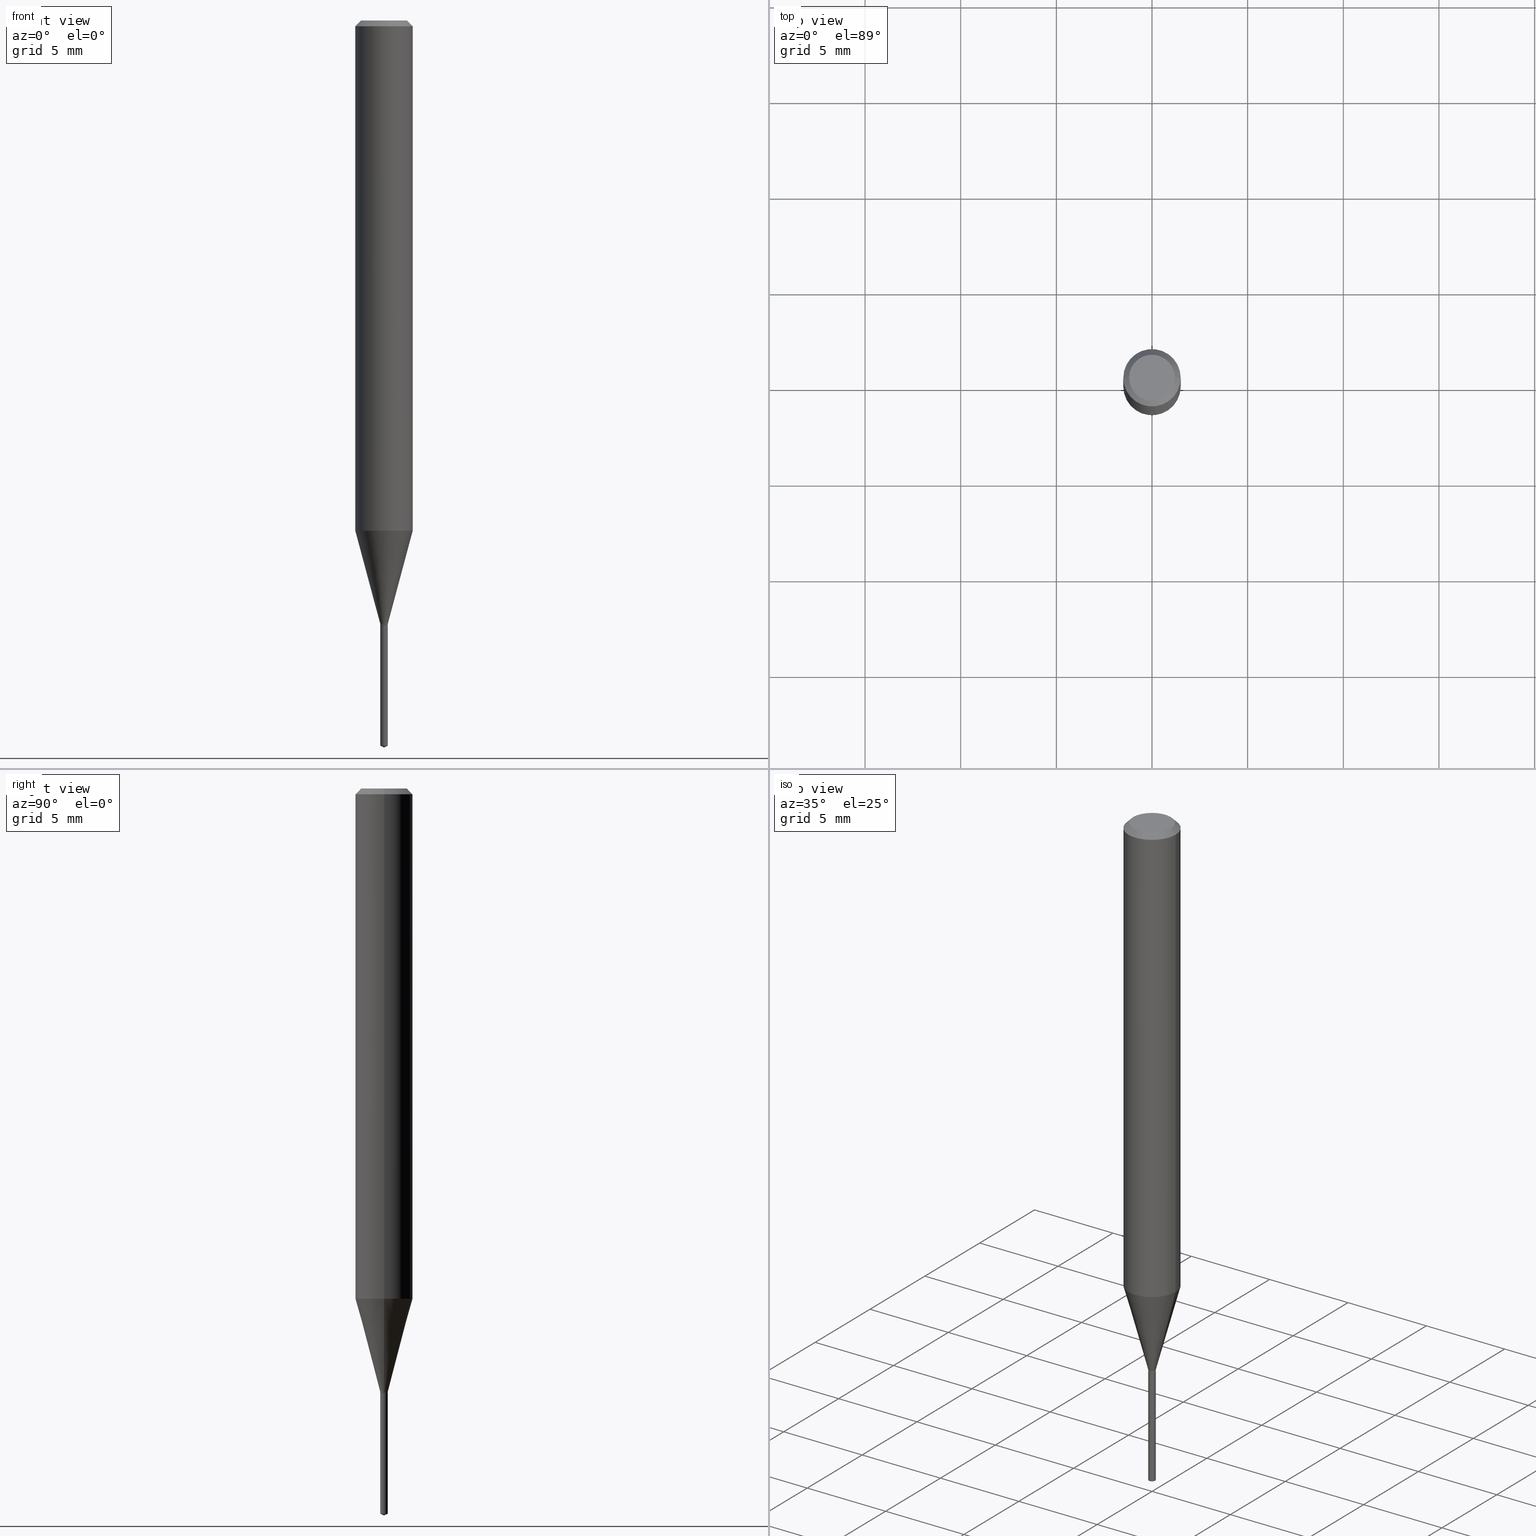
[diagram: canonical four-view strip — front | top / right | iso, engineering-drawing reading convention]
A machine part, canonical four-view strip (front | top / right | iso — engineering-drawing reading convention). The complete STEP part file that produces these views, byte-faithful:
ISO-10303-21;
HEADER;
FILE_DESCRIPTION (( 'STEP AP203' ),
    '1' );
FILE_NAME ('07758.STEP',
    '2024-04-24T02:24:44',
    ( '' ),
    ( '' ),
    'SwSTEP 2.0',
    'SolidWorks 2023',
    '' );
FILE_SCHEMA (( 'CONFIG_CONTROL_DESIGN' ));
ENDSEC;

DATA;
#1 = EDGE_LOOP ( 'NONE', ( #412, #160, #194, #294 ) ) ;
#2 = AXIS2_PLACEMENT_3D ( 'NONE', #390, #349, #127 ) ;
#3 = AXIS2_PLACEMENT_3D ( 'NONE', #31, #407, #65 ) ;
#4 = PRODUCT_RELATED_PRODUCT_CATEGORY ( 'detail', '', ( #161 ) ) ;
#5 = ORIENTED_EDGE ( 'NONE', *, *, #437, .T. ) ;
#6 =( NAMED_UNIT ( * ) PLANE_ANGLE_UNIT ( ) SI_UNIT ( $, .RADIAN. ) );
#7 = EDGE_LOOP ( 'NONE', ( #365, #5, #188, #200 ) ) ;
#8 = ORIENTED_EDGE ( 'NONE', *, *, #124, .T. ) ;
#9 = CIRCLE ( 'NONE', #2, 0.007700000000000000247 ) ;
#10 = AXIS2_PLACEMENT_3D ( 'NONE', #73, #265, #410 ) ;
#11 = CARTESIAN_POINT ( 'NONE',  ( 3.042407741774928155E-29, -4.343751933654757151E-15, -1.244099999999999984 ) ) ;
#12 = LINE ( 'NONE', #203, #266 ) ;
#13 = EDGE_CURVE ( 'NONE', #343, #262, #215, .T. ) ;
#14 = DIRECTION ( 'NONE',  ( 1.000000000000000000, -6.982962677686266711E-15, 4.876176775795936353E-29 ) ) ;
#15 = AXIS2_PLACEMENT_3D ( 'NONE', #472, #130, #428 ) ;
#16 = VECTOR ( 'NONE', #181, 39.37007874015748143 ) ;
#17 = LINE ( 'NONE', #133, #434 ) ;
#18 = COORDINATED_UNIVERSAL_TIME_OFFSET ( 5, 0, .BEHIND. ) ;
#19 = CARTESIAN_POINT ( 'NONE',  ( 0.04724000000000000421, -3.852183633974369345E-16, -3.380025165621689721E-19 ) ) ;
#20 = ADVANCED_FACE ( 'NONE', ( #278 ), #413, .T. ) ;
#21 = APPROVAL_ROLE ( '' ) ;
#22 = DIRECTION ( 'NONE',  ( 1.000000000000000000, -6.982962677686252511E-15, 0.000000000000000000 ) ) ;
#23 = CARTESIAN_POINT ( 'NONE',  ( 8.265746106709734507E-48, -1.180129479067563789E-33, -3.380025165646692144E-19 ) ) ;
#24 = CIRCLE ( 'NONE', #201, 0.007199999999999999803 ) ;
#25 = AXIS2_PLACEMENT_3D ( 'NONE', #405, #67, #293 ) ;
#26 = ORIENTED_EDGE ( 'NONE', *, *, #13, .T. ) ;
#27 = EDGE_CURVE ( 'NONE', #219, #220, #99, .T. ) ;
#28 = FACE_OUTER_BOUND ( 'NONE', #420, .T. ) ;
#29 = DIRECTION ( 'NONE',  ( -2.445468806185136597E-29, 3.491481338843145583E-15, 1.000000000000000000 ) ) ;
#30 = ORIENTED_EDGE ( 'NONE', *, *, #404, .F. ) ;
#31 = CARTESIAN_POINT ( 'NONE',  ( 4.132873053354867254E-48, -5.900647395337818946E-34, -1.690012582823346072E-19 ) ) ;
#32 = CC_DESIGN_SECURITY_CLASSIFICATION ( #129, ( #276 ) ) ;
#33 = DIRECTION ( 'NONE',  ( -2.445468806185136597E-29, 3.491481338843145583E-15, 1.000000000000000000 ) ) ;
#34 = ORIENTED_EDGE ( 'NONE', *, *, #27, .T. ) ;
#35 = ADVANCED_FACE ( 'NONE', ( #373 ), #38, .T. ) ;
#36 = CARTESIAN_POINT ( 'NONE',  ( 3.042407741774928155E-29, -4.343751933654757151E-15, -1.244099999999999984 ) ) ;
#37 = ORIENTED_EDGE ( 'NONE', *, *, #467, .F. ) ;
#38 = CYLINDRICAL_SURFACE ( 'NONE', #283, 0.007700000000000000247 ) ;
#39 = VECTOR ( 'NONE', #398, 39.37007874015748143 ) ;
#40 = VECTOR ( 'NONE', #334, 39.37007874015748143 ) ;
#41 = ORIENTED_EDGE ( 'NONE', *, *, #421, .F. ) ;
#42 = ADVANCED_FACE ( 'NONE', ( #274 ), #234, .T. ) ;
#43 = ORIENTED_EDGE ( 'NONE', *, *, #211, .F. ) ;
#44 = VERTEX_POINT ( 'NONE', #79 ) ;
#45 =( LENGTH_UNIT ( ) NAMED_UNIT ( * ) SI_UNIT ( $, .METRE. ) );
#46 = AXIS2_PLACEMENT_3D ( 'NONE', #168, #100, #22 ) ;
#47 = VECTOR ( 'NONE', #69, 39.37007874015748143 ) ;
#48 = DIRECTION ( 'NONE',  ( -2.445453018118844559E-29, 3.491503948252676758E-15, 1.000000000000000000 ) ) ;
#49 = DIRECTION ( 'NONE',  ( 6.982962677686265922E-15, 1.000000000000000000, -3.491503948252676363E-15 ) ) ;
#50 = CARTESIAN_POINT ( 'NONE',  ( -0.007199999999999999803, -4.292592856680030050E-15, -1.244099999999999984 ) ) ;
#51 = APPLICATION_CONTEXT ( 'configuration controlled 3d designs of mechanical parts and assemblies' ) ;
#52 = COORDINATED_UNIVERSAL_TIME_OFFSET ( 5, 0, .BEHIND. ) ;
#53 = APPROVAL_PERSON_ORGANIZATION ( #475, #363, #281 ) ;
#54 = CARTESIAN_POINT ( 'NONE',  ( 0.000000000000000000, 0.000000000000000000, 0.000000000000000000 ) ) ;
#55 = COORDINATED_UNIVERSAL_TIME_OFFSET ( 5, 0, .BEHIND. ) ;
#56 = FACE_OUTER_BOUND ( 'NONE', #76, .T. ) ;
#57 = LINE ( 'NONE', #366, #47 ) ;
#58 = VERTEX_POINT ( 'NONE', #377 ) ;
#59 = CARTESIAN_POINT ( 'NONE',  ( -9.261901597635378744E-28, 1.322371744356641908E-13, 37.87397874015748300 ) ) ;
#60 = CARTESIAN_POINT ( 'NONE',  ( -0.05904999999999999832, -1.434347320989793851E-15, -0.01181000000000007218 ) ) ;
#61 = AXIS2_PLACEMENT_3D ( 'NONE', #353, #210, #175 ) ;
#62 = CIRCLE ( 'NONE', #10, 0.007700000000000000247 ) ;
#63 = ORIENTED_EDGE ( 'NONE', *, *, #27, .F. ) ;
#64 = ADVANCED_FACE ( 'NONE', ( #197 ), #119, .T. ) ;
#65 = DIRECTION ( 'NONE',  ( -1.000000000000000000, 6.982962677686265922E-15, -4.876176775795935793E-29 ) ) ;
#66 = VERTEX_POINT ( 'NONE', #178 ) ;
#67 = DIRECTION ( 'NONE',  ( -2.445468806185136597E-29, 3.491481338843145583E-15, 1.000000000000000000 ) ) ;
#68 = CARTESIAN_POINT ( 'NONE',  ( 0.05905000000000006771, -4.123439461173745257E-16, 2.879382386107503723E-30 ) ) ;
#69 = DIRECTION ( 'NONE',  ( -2.445453018118844278E-29, 3.491503948252676363E-15, 1.000000000000000000 ) ) ;
#70 = CIRCLE ( 'NONE', #113, 0.007700000000000000247 ) ;
#71 = VERTEX_POINT ( 'NONE', #320 ) ;
#72 = VECTOR ( 'NONE', #327, 39.37007874015748143 ) ;
#73 = CARTESIAN_POINT ( 'NONE',  ( 3.041185007371835914E-29, -4.342006192985336437E-15, -1.243600000000000039 ) ) ;
#74 = DIRECTION ( 'NONE',  ( -2.445453018118844559E-29, 3.491503948252676758E-15, 1.000000000000000000 ) ) ;
#75 = EDGE_CURVE ( 'NONE', #301, #298, #17, .T. ) ;
#76 = EDGE_LOOP ( 'NONE', ( #358, #379, #198, #304 ) ) ;
#77 = DIRECTION ( 'NONE',  ( -6.982962677686265922E-15, -1.000000000000000000, 0.000000000000000000 ) ) ;
#78 = EDGE_CURVE ( 'NONE', #44, #71, #394, .T. ) ;
#79 = CARTESIAN_POINT ( 'NONE',  ( -0.007199999999999999803, -4.289943629505918849E-15, -1.244099999999999984 ) ) ;
#80 = ADVANCED_BREP_SHAPE_REPRESENTATION ( '07758', ( #308, #138, #267 ), #452 ) ;
#81 = VECTOR ( 'NONE', #112, 39.37007874015748143 ) ;
#82 = EDGE_CURVE ( 'NONE', #335, #300, #251, .T. ) ;
#83 = EDGE_LOOP ( 'NONE', ( #30, #489, #8, #136 ) ) ;
#84 = DIRECTION ( 'NONE',  ( 1.000000000000000000, -6.982962677686256455E-15, 0.000000000000000000 ) ) ;
#85 = CARTESIAN_POINT ( 'NONE',  ( -0.05904999999999999832, 3.711095515056362547E-16, -0.01181000000000007218 ) ) ;
#86 = CARTESIAN_POINT ( 'NONE',  ( 3.042407741774928155E-29, -4.343751933654757151E-15, -1.244099999999999984 ) ) ;
#87 = LINE ( 'NONE', #280, #225 ) ;
#88 = PERSON_AND_ORGANIZATION_ROLE ( 'creator' ) ;
#89 = CIRCLE ( 'NONE', #15, 0.05904999999999999832 ) ;
#90 = LOCAL_TIME ( 22, 24, 44.00000000000000000, #18 ) ;
#91 = CYLINDRICAL_SURFACE ( 'NONE', #207, 0.05905000000000006771 ) ;
#92 = CC_DESIGN_PERSON_AND_ORGANIZATION_ASSIGNMENT ( #384, #132, ( #129 ) ) ;
#93 = PERSON_AND_ORGANIZATION_ROLE ( 'creator' ) ;
#94 = CARTESIAN_POINT ( 'NONE',  ( 0.007700000000000000247, -4.389490339193602123E-15, -1.241799999999999793 ) ) ;
#95 = COORDINATED_UNIVERSAL_TIME_OFFSET ( 5, 0, .BEHIND. ) ;
#96 = DIRECTION ( 'NONE',  ( 6.439704144416972766E-15, 0.9063077870366441635, 0.4226182617407117093 ) ) ;
#97 = CALENDAR_DATE ( 2024, 23, 4 ) ;
#98 = AXIS2_PLACEMENT_3D ( 'NONE', #476, #205, #249 ) ;
#99 = CIRCLE ( 'NONE', #156, 0.04724000000000000421 ) ;
#100 = DIRECTION ( 'NONE',  ( -2.445468806185136597E-29, 3.491481338843145583E-15, 1.000000000000000000 ) ) ;
#101 = DIRECTION ( 'NONE',  ( 1.000000000000000000, 0.000000000000000000, 0.000000000000000000 ) ) ;
#102 = DIRECTION ( 'NONE',  ( -6.982962677686265922E-15, -1.000000000000000000, 0.000000000000000000 ) ) ;
#103 = CARTESIAN_POINT ( 'NONE',  ( 3.036783163520702277E-29, -4.335721526575417446E-15, -1.241799999999999793 ) ) ;
#104 = LINE ( 'NONE', #257, #72 ) ;
#105 = CARTESIAN_POINT ( 'NONE',  ( 3.036783163520702277E-29, -4.335721526575417446E-15, -1.241799999999999793 ) ) ;
#106 = VECTOR ( 'NONE', #96, 39.37007874015748143 ) ;
#107 = ORIENTED_EDGE ( 'NONE', *, *, #440, .T. ) ;
#108 = CARTESIAN_POINT ( 'NONE',  ( 3.042407741774928155E-29, -4.343751933654757151E-15, -1.244099999999999984 ) ) ;
#109 = VERTEX_POINT ( 'NONE', #387 ) ;
#110 = CARTESIAN_POINT ( 'NONE',  ( 2.888098660104664204E-31, -4.123439461173780263E-17, -0.01181000000000007218 ) ) ;
#111 = ORIENTED_EDGE ( 'NONE', *, *, #318, .T. ) ;
#112 = DIRECTION ( 'NONE',  ( -6.328713451373318891E-15, -0.9063077870366412769, 0.4226182617407180375 ) ) ;
#113 = AXIS2_PLACEMENT_3D ( 'NONE', #426, #48, #312 ) ;
#114 = ORIENTED_EDGE ( 'NONE', *, *, #13, .F. ) ;
#115 = DIRECTION ( 'NONE',  ( -2.445453018118844559E-29, 3.491503948252676758E-15, 1.000000000000000000 ) ) ;
#116 = CARTESIAN_POINT ( 'NONE',  ( 3.036783163520702277E-29, -4.335721526575417446E-15, -1.241799999999999793 ) ) ;
#117 = VERTEX_POINT ( 'NONE', #94 ) ;
#118 = EDGE_LOOP ( 'NONE', ( #306, #490, #368, #37 ) ) ;
#119 = CONICAL_SURFACE ( 'NONE', #61, 0.05904999999999999832, 0.7853981633974452814 ) ;
#120 = LENGTH_MEASURE_WITH_UNIT ( LENGTH_MEASURE( 0.02539999999999999897 ), #45 );
#121 = LOCAL_TIME ( 22, 24, 44.00000000000000000, #52 ) ;
#122 = PERSON ( 'UNSPECIFIED', 'UNSPECIFIED', 'UNSPECIFIED', ('UNSPECIFIED'), ('UNSPECIFIED'), ('UNSPECIFIED') ) ;
#123 = DIRECTION ( 'NONE',  ( -6.982962677686265922E-15, -1.000000000000000000, 0.000000000000000000 ) ) ;
#124 = EDGE_CURVE ( 'NONE', #411, #117, #87, .T. ) ;
#125 = DIRECTION ( 'NONE',  ( -0.2588190451025213501, 5.211531920934551042E-15, 0.9659258262890682012 ) ) ;
#126 = APPROVAL_STATUS ( 'not_yet_approved' ) ;
#127 = DIRECTION ( 'NONE',  ( -6.982962677686265922E-15, -1.000000000000000000, 0.000000000000000000 ) ) ;
#128 = APPROVAL_STATUS ( 'not_yet_approved' ) ;
#129 = SECURITY_CLASSIFICATION ( '', '', #432 ) ;
#130 = DIRECTION ( 'NONE',  ( -2.445468806185136597E-29, 3.491481338843145583E-15, 1.000000000000000000 ) ) ;
#131 = EDGE_CURVE ( 'NONE', #66, #463, #282, .T. ) ;
#132 = PERSON_AND_ORGANIZATION_ROLE ( 'classification_officer' ) ;
#133 = CARTESIAN_POINT ( 'NONE',  ( -0.007700000000000000247, -4.281009735921889447E-15, -1.241799999999999793 ) ) ;
#134 = CC_DESIGN_PERSON_AND_ORGANIZATION_ASSIGNMENT ( #352, #93, ( #276 ) ) ;
#135 = APPLICATION_PROTOCOL_DEFINITION ( 'international standard', 'config_control_design', 1994, #177 ) ;
#136 = ORIENTED_EDGE ( 'NONE', *, *, #437, .F. ) ;
#137 = CARTESIAN_POINT ( 'NONE',  ( 3.658681888747289821E-29, -5.223582800248033507E-15, -1.496099999999999985 ) ) ;
#138 = MANIFOLD_SOLID_BREP ( 'Body-Move/Copy2[2]', #350 ) ;
#139 = DATE_AND_TIME ( #322, #121 ) ;
#140 = AXIS2_PLACEMENT_3D ( 'NONE', #23, #299, #329 ) ;
#141 = CARTESIAN_POINT ( 'NONE',  ( 0.007199999999999999803, -4.394029264934098821E-15, -1.244099999999999984 ) ) ;
#142 = DIRECTION ( 'NONE',  ( -2.445468806185136597E-29, 3.491481338843145583E-15, 1.000000000000000000 ) ) ;
#143 = ORIENTED_EDGE ( 'NONE', *, *, #453, .T. ) ;
#144 = DIRECTION ( 'NONE',  ( -6.982962677686266711E-15, -1.000000000000000000, 3.520397390770627025E-15 ) ) ;
#145 = DIRECTION ( 'NONE',  ( -2.445468806185136597E-29, 3.491481338843145583E-15, 1.000000000000000000 ) ) ;
#146 = EDGE_CURVE ( 'NONE', #109, #463, #9, .T. ) ;
#147 = ORIENTED_EDGE ( 'NONE', *, *, #460, .F. ) ;
#148 = FACE_OUTER_BOUND ( 'NONE', #1, .T. ) ;
#149 = AXIS2_PLACEMENT_3D ( 'NONE', #355, #415, #446 ) ;
#150 = CARTESIAN_POINT ( 'NONE',  ( 3.658642260407602849E-29, -5.223639056980828932E-15, -1.496099999999999985 ) ) ;
#151 = CARTESIAN_POINT ( 'NONE',  ( -5.376881261815383081E-17, -0.007700000000004343995, -1.244099999999999984 ) ) ;
#152 = ORIENTED_EDGE ( 'NONE', *, *, #256, .T. ) ;
#153 = CARTESIAN_POINT ( 'NONE',  ( 5.471179065356420705E-17, 0.007699999999994788270, -1.492509431032206235 ) ) ;
#154 = EDGE_LOOP ( 'NONE', ( #34, #271 ) ) ;
#155 = DESIGN_CONTEXT ( 'detailed design', #177, 'design' ) ;
#156 = AXIS2_PLACEMENT_3D ( 'NONE', #380, #310, #230 ) ;
#157 = DIRECTION ( 'NONE',  ( 1.000000000000000000, -6.982962677686256455E-15, 0.000000000000000000 ) ) ;
#158 = AXIS2_PLACEMENT_3D ( 'NONE', #217, #29, #297 ) ;
#159 =( CONVERSION_BASED_UNIT ( 'INCH', #120 ) LENGTH_UNIT ( ) NAMED_UNIT ( #455 ) );
#160 = ORIENTED_EDGE ( 'NONE', *, *, #78, .T. ) ;
#161 = PRODUCT ( '07758', '07758', '', ( #254 ) ) ;
#162 = ORIENTED_EDGE ( 'NONE', *, *, #245, .F. ) ;
#163 = ORIENTED_EDGE ( 'NONE', *, *, #414, .F. ) ;
#164 = VECTOR ( 'NONE', #402, 39.37007874015748143 ) ;
#165 = AXIS2_PLACEMENT_3D ( 'NONE', #108, #292, #102 ) ;
#166 = DIRECTION ( 'NONE',  ( -6.982962677686265922E-15, -1.000000000000000000, 0.000000000000000000 ) ) ;
#167 = DIRECTION ( 'NONE',  ( 0.2588190451025213501, 1.565188264969621968E-15, 0.9659258262890682012 ) ) ;
#168 = CARTESIAN_POINT ( 'NONE',  ( 3.042407741774928155E-29, -4.343751933654757151E-15, -1.244099999999999984 ) ) ;
#169 = DATE_TIME_ROLE ( 'creation_date' ) ;
#170 = AXIS2_PLACEMENT_3D ( 'NONE', #11, #74, #123 ) ;
#171 = LOCAL_TIME ( 22, 24, 44.00000000000000000, #55 ) ;
#172 = CYLINDRICAL_SURFACE ( 'NONE', #480, 0.05905000000000006771 ) ;
#173 = EDGE_CURVE ( 'NONE', #463, #109, #70, .T. ) ;
#174 = DATE_AND_TIME ( #250, #90 ) ;
#175 = DIRECTION ( 'NONE',  ( -1.000000000000000000, 6.982962677686266711E-15, 0.000000000000000000 ) ) ;
#176 = DATE_AND_TIME ( #287, #242 ) ;
#177 = APPLICATION_CONTEXT ( 'configuration controlled 3d designs of mechanical parts and assemblies' ) ;
#178 = CARTESIAN_POINT ( 'NONE',  ( 3.658642260407602849E-29, -5.223639056980828932E-15, -1.496099999999999985 ) ) ;
#179 = ADVANCED_FACE ( 'NONE', ( #56 ), #91, .T. ) ;
#180 = APPROVAL_PERSON_ORGANIZATION ( #348, #457, #430 ) ;
#181 = DIRECTION ( 'NONE',  ( -2.445453018118844278E-29, 3.491503948252676363E-15, 1.000000000000000000 ) ) ;
#182 = CC_DESIGN_PERSON_AND_ORGANIZATION_ASSIGNMENT ( #424, #88, ( #464 ) ) ;
#183 = CARTESIAN_POINT ( 'NONE',  ( 0.05904999999999999832, -4.535783407291118600E-16, -0.01181000000000007218 ) ) ;
#184 = CARTESIAN_POINT ( 'NONE',  ( 3.041185007371835914E-29, -4.342006192985336437E-15, -1.243600000000000039 ) ) ;
#185 = CYLINDRICAL_SURFACE ( 'NONE', #25, 0.007700000000000000247 ) ;
#186 = LINE ( 'NONE', #261, #164 ) ;
#187 = CC_DESIGN_PERSON_AND_ORGANIZATION_ASSIGNMENT ( #243, #473, ( #276 ) ) ;
#188 = ORIENTED_EDGE ( 'NONE', *, *, #241, .T. ) ;
#189 = CYLINDRICAL_SURFACE ( 'NONE', #382, 0.007700000000000000247 ) ;
#190 = ORIENTED_EDGE ( 'NONE', *, *, #404, .T. ) ;
#191 = DIRECTION ( 'NONE',  ( -2.445468806185136597E-29, 3.491481338843145583E-15, 1.000000000000000000 ) ) ;
#192 = DIRECTION ( 'NONE',  ( -2.445453018118844559E-29, 3.491503948252676758E-15, 1.000000000000000000 ) ) ;
#193 =( NAMED_UNIT ( * ) SI_UNIT ( $, .STERADIAN. ) SOLID_ANGLE_UNIT ( ) );
#194 = ORIENTED_EDGE ( 'NONE', *, *, #478, .F. ) ;
#195 = CIRCLE ( 'NONE', #165, 0.007700000000000000247 ) ;
#196 = LINE ( 'NONE', #150, #81 ) ;
#197 = FACE_OUTER_BOUND ( 'NONE', #340, .T. ) ;
#198 = ORIENTED_EDGE ( 'NONE', *, *, #460, .T. ) ;
#199 = ADVANCED_FACE ( 'NONE', ( #423 ), #172, .T. ) ;
#200 = ORIENTED_EDGE ( 'NONE', *, *, #311, .F. ) ;
#201 = AXIS2_PLACEMENT_3D ( 'NONE', #474, #288, #240 ) ;
#202 = CARTESIAN_POINT ( 'NONE',  ( 3.042407741774928155E-29, -4.343751933654757151E-15, -1.244099999999999984 ) ) ;
#203 = CARTESIAN_POINT ( 'NONE',  ( 0.007700000000000000247, -4.389490339193602123E-15, -1.241799999999999793 ) ) ;
#204 = APPROVAL_DATE_TIME ( #176, #457 ) ;
#205 = DIRECTION ( 'NONE',  ( -2.445468806185136597E-29, 3.491481338843145583E-15, 1.000000000000000000 ) ) ;
#206 = PERSON_AND_ORGANIZATION_ROLE ( 'design_owner' ) ;
#207 = AXIS2_PLACEMENT_3D ( 'NONE', #54, #209, #14 ) ;
#208 = ORGANIZATION ( 'UNSPECIFIED', 'UNSPECIFIED', '' ) ;
#209 = DIRECTION ( 'NONE',  ( -2.445468806185136597E-29, 3.491481338843145583E-15, 1.000000000000000000 ) ) ;
#210 = DIRECTION ( 'NONE',  ( 2.445468806185136597E-29, -3.491481338843145583E-15, -1.000000000000000000 ) ) ;
#211 = EDGE_CURVE ( 'NONE', #220, #300, #385, .T. ) ;
#212 = PERSON_AND_ORGANIZATION ( #122, #208 ) ;
#213 = FACE_OUTER_BOUND ( 'NONE', #83, .T. ) ;
#214 = ORIENTED_EDGE ( 'NONE', *, *, #453, .F. ) ;
#215 = CIRCLE ( 'NONE', #170, 0.007700000000000000247 ) ;
#216 = CC_DESIGN_APPROVAL ( #363, ( #276 ) ) ;
#217 = CARTESIAN_POINT ( 'NONE',  ( 3.042407741774928155E-29, -4.343751933654757151E-15, -1.244099999999999984 ) ) ;
#218 = FACE_OUTER_BOUND ( 'NONE', #7, .T. ) ;
#219 = VERTEX_POINT ( 'NONE', #246 ) ;
#220 = VERTEX_POINT ( 'NONE', #19 ) ;
#221 = EDGE_CURVE ( 'NONE', #44, #341, #24, .T. ) ;
#222 = CARTESIAN_POINT ( 'NONE',  ( 0.007199999999999999803, -4.394029264934098821E-15, -1.244099999999999984 ) ) ;
#223 = ORIENTED_EDGE ( 'NONE', *, *, #146, .T. ) ;
#224 = CARTESIAN_POINT ( 'NONE',  ( 0.007700000000000000247, -4.395775005603521113E-15, -1.243600000000000039 ) ) ;
#225 = VECTOR ( 'NONE', #431, 39.37007874015748143 ) ;
#226 = FACE_OUTER_BOUND ( 'NONE', #154, .T. ) ;
#227 = EDGE_LOOP ( 'NONE', ( #107, #309, #269, #147 ) ) ;
#228 = ORIENTED_EDGE ( 'NONE', *, *, #173, .T. ) ;
#229 = FACE_OUTER_BOUND ( 'NONE', #374, .T. ) ;
#230 = DIRECTION ( 'NONE',  ( 1.000000000000000000, -6.982962677686266711E-15, 4.876185090822587894E-29 ) ) ;
#231 = ORIENTED_EDGE ( 'NONE', *, *, #427, .T. ) ;
#232 = ADVANCED_FACE ( 'NONE', ( #433 ), #381, .T. ) ;
#233 = APPLICATION_PROTOCOL_DEFINITION ( 'international standard', 'config_control_design', 1994, #51 ) ;
#234 = CONICAL_SURFACE ( 'NONE', #470, 0.007700000000000000247, 0.2617993877991500740 ) ;
#235 = ORIENTED_EDGE ( 'NONE', *, *, #440, .F. ) ;
#236 = CONICAL_SURFACE ( 'NONE', #425, 84.42940631927018558, 1.134464013796297133 ) ;
#237 = ADVANCED_FACE ( 'NONE', ( #323 ), #383, .F. ) ;
#238 = ORIENTED_EDGE ( 'NONE', *, *, #131, .T. ) ;
#239 = EDGE_LOOP ( 'NONE', ( #111, #26 ) ) ;
#240 = DIRECTION ( 'NONE',  ( 1.000000000000000000, -6.982962677686252511E-15, 0.000000000000000000 ) ) ;
#241 = EDGE_CURVE ( 'NONE', #117, #58, #12, .T. ) ;
#242 = LOCAL_TIME ( 22, 24, 44.00000000000000000, #477 ) ;
#243 = PERSON_AND_ORGANIZATION ( #122, #208 ) ;
#244 = DIRECTION ( 'NONE',  ( -2.445468806185136597E-29, 3.491481338843145583E-15, 1.000000000000000000 ) ) ;
#245 = EDGE_CURVE ( 'NONE', #341, #44, #487, .T. ) ;
#246 = CARTESIAN_POINT ( 'NONE',  ( -0.04724000000000000421, 3.504923541997677355E-16, -3.380025165670481712E-19 ) ) ;
#247 = APPROVAL_STATUS ( 'not_yet_approved' ) ;
#248 = DIRECTION ( 'NONE',  ( -0.7071067811865453523, 2.468850131082234184E-15, -0.7071067811865496822 ) ) ;
#249 = DIRECTION ( 'NONE',  ( 1.000000000000000000, -6.982962677686266711E-15, 0.000000000000000000 ) ) ;
#250 = CALENDAR_DATE ( 2024, 23, 4 ) ;
#251 = CIRCLE ( 'NONE', #98, 0.05904999999999999832 ) ;
#252 = CC_DESIGN_APPROVAL ( #457, ( #464 ) ) ;
#253 = DIRECTION ( 'NONE',  ( 0.7071067811865453523, -7.319954787623248157E-15, -0.7071067811865496822 ) ) ;
#254 = MECHANICAL_CONTEXT ( 'NONE', #51, 'mechanical' ) ;
#255 = DIRECTION ( 'NONE',  ( 1.000000000000000000, -6.982962677686265922E-15, 4.876176775795935793E-29 ) ) ;
#256 = EDGE_CURVE ( 'NONE', #300, #335, #89, .T. ) ;
#257 = CARTESIAN_POINT ( 'NONE',  ( -0.05905000000000006771, 4.195754854663396409E-16, -2.904631170795525045E-30 ) ) ;
#258 = ORIENTED_EDGE ( 'NONE', *, *, #146, .F. ) ;
#259 = AXIS2_PLACEMENT_3D ( 'NONE', #105, #33, #357 ) ;
#260 = AXIS2_PLACEMENT_3D ( 'NONE', #116, #458, #418 ) ;
#261 = CARTESIAN_POINT ( 'NONE',  ( -0.007700000000000000247, 5.471179065352771607E-17, -3.787580019496277690E-31 ) ) ;
#262 = VERTEX_POINT ( 'NONE', #264 ) ;
#263 = LINE ( 'NONE', #222, #39 ) ;
#264 = CARTESIAN_POINT ( 'NONE',  ( -5.376881261815383081E-17, -0.007700000000004343995, -1.244099999999999984 ) ) ;
#265 = DIRECTION ( 'NONE',  ( -2.445468806185136597E-29, 3.491481338843145583E-15, 1.000000000000000000 ) ) ;
#266 = VECTOR ( 'NONE', #167, 39.37007874015747433 ) ;
#267 = AXIS2_PLACEMENT_3D ( 'NONE', #378, #461, #101 ) ;
#268 = ADVANCED_FACE ( 'NONE', ( #28 ), #448, .F. ) ;
#269 = ORIENTED_EDGE ( 'NONE', *, *, #256, .F. ) ;
#270 = ORIENTED_EDGE ( 'NONE', *, *, #427, .F. ) ;
#271 = ORIENTED_EDGE ( 'NONE', *, *, #414, .T. ) ;
#272 = EDGE_CURVE ( 'NONE', #117, #301, #359, .T. ) ;
#273 = DIRECTION ( 'NONE',  ( -2.445453018118844559E-29, 3.491503948252676758E-15, 1.000000000000000000 ) ) ;
#274 = FACE_OUTER_BOUND ( 'NONE', #442, .T. ) ;
#275 = EDGE_LOOP ( 'NONE', ( #163, #339, #152, #406 ) ) ;
#276 = PRODUCT_DEFINITION_FORMATION_WITH_SPECIFIED_SOURCE ( 'ANY', '', #161, .NOT_KNOWN. ) ;
#277 = EDGE_CURVE ( 'NONE', #341, #411, #263, .T. ) ;
#278 = FACE_OUTER_BOUND ( 'NONE', #409, .T. ) ;
#279 = FACE_OUTER_BOUND ( 'NONE', #408, .T. ) ;
#280 = CARTESIAN_POINT ( 'NONE',  ( 0.007700000000000000247, -5.376881261818425742E-17, 3.754656117362870757E-31 ) ) ;
#281 = APPROVAL_ROLE ( '' ) ;
#282 = LINE ( 'NONE', #137, #106 ) ;
#283 = AXIS2_PLACEMENT_3D ( 'NONE', #36, #192, #77 ) ;
#284 = VECTOR ( 'NONE', #248, 39.37007874015748143 ) ;
#285 = UNCERTAINTY_MEASURE_WITH_UNIT (LENGTH_MEASURE( 1.000000000000000082E-05 ), #159, 'distance_accuracy_value', 'NONE');
#286 = DIRECTION ( 'NONE',  ( 1.000000000000000000, -6.982962677686252511E-15, 0.000000000000000000 ) ) ;
#287 = CALENDAR_DATE ( 2024, 23, 4 ) ;
#288 = DIRECTION ( 'NONE',  ( -2.445468806185136597E-29, 3.491481338843145583E-15, 1.000000000000000000 ) ) ;
#289 = APPROVAL_DATE_TIME ( #174, #363 ) ;
#290 = DIRECTION ( 'NONE',  ( 1.000000000000000000, -6.982962677686266711E-15, 4.876176775795936353E-29 ) ) ;
#291 = FACE_OUTER_BOUND ( 'NONE', #275, .T. ) ;
#292 = DIRECTION ( 'NONE',  ( -2.445453018118844559E-29, 3.491503948252676758E-15, 1.000000000000000000 ) ) ;
#293 = DIRECTION ( 'NONE',  ( 1.000000000000000000, -6.982962677686266711E-15, 4.876176775795935793E-29 ) ) ;
#294 = ORIENTED_EDGE ( 'NONE', *, *, #277, .F. ) ;
#295 = CLOSED_SHELL ( 'NONE', ( #20, #445, #484, #35, #237 ) ) ;
#296 = AXIS2_PLACEMENT_3D ( 'NONE', #103, #191, #84 ) ;
#297 = DIRECTION ( 'NONE',  ( 1.000000000000000000, -6.982962677686252511E-15, 0.000000000000000000 ) ) ;
#298 = VERTEX_POINT ( 'NONE', #439 ) ;
#299 = DIRECTION ( 'NONE',  ( -2.445468806185136597E-29, 3.491481338843145583E-15, 1.000000000000000000 ) ) ;
#300 = VERTEX_POINT ( 'NONE', #183 ) ;
#301 = VERTEX_POINT ( 'NONE', #482 ) ;
#302 = VECTOR ( 'NONE', #253, 39.37007874015748143 ) ;
#303 = AXIS2_PLACEMENT_3D ( 'NONE', #59, #336, #144 ) ;
#304 = ORIENTED_EDGE ( 'NONE', *, *, #82, .F. ) ;
#305 = ORIENTED_EDGE ( 'NONE', *, *, #272, .F. ) ;
#306 = ORIENTED_EDGE ( 'NONE', *, *, #78, .F. ) ;
#307 = CC_DESIGN_DATE_AND_TIME_ASSIGNMENT ( #316, #169, ( #464 ) ) ;
#308 = MANIFOLD_SOLID_BREP ( 'Body-Move/Copy2[1]', #295 ) ;
#309 = ORIENTED_EDGE ( 'NONE', *, *, #326, .T. ) ;
#310 = DIRECTION ( 'NONE',  ( -2.445468806185136597E-29, 3.491481338843145583E-15, 1.000000000000000000 ) ) ;
#311 = EDGE_CURVE ( 'NONE', #298, #58, #314, .T. ) ;
#312 = DIRECTION ( 'NONE',  ( -6.982962677686265922E-15, -1.000000000000000000, 0.000000000000000000 ) ) ;
#313 = DIRECTION ( 'NONE',  ( -2.445468806185136597E-29, 3.491481338843145583E-15, 1.000000000000000000 ) ) ;
#314 = CIRCLE ( 'NONE', #375, 0.05905000000000013710 ) ;
#315 = AXIS2_PLACEMENT_3D ( 'NONE', #184, #361, #397 ) ;
#316 = DATE_AND_TIME ( #97, #171 ) ;
#317 = DIRECTION ( 'NONE',  ( -0.7071067811866191821, 7.493145998870612907E-15, 0.7071067811864758523 ) ) ;
#318 = EDGE_CURVE ( 'NONE', #262, #343, #195, .T. ) ;
#319 = PERSON_AND_ORGANIZATION ( #122, #208 ) ;
#320 = CARTESIAN_POINT ( 'NONE',  ( -0.007700000000000000247, -4.284152069126848942E-15, -1.243600000000000039 ) ) ;
#321 = CC_DESIGN_DATE_AND_TIME_ASSIGNMENT ( #388, #354, ( #129 ) ) ;
#322 = CALENDAR_DATE ( 2024, 23, 4 ) ;
#323 = FACE_OUTER_BOUND ( 'NONE', #239, .T. ) ;
#324 = CIRCLE ( 'NONE', #140, 0.04724000000000000421 ) ;
#325 = LINE ( 'NONE', #85, #284 ) ;
#326 = EDGE_CURVE ( 'NONE', #298, #335, #104, .T. ) ;
#327 = DIRECTION ( 'NONE',  ( -2.445468806185136877E-29, 3.491481338843145188E-15, 1.000000000000000000 ) ) ;
#328 = EDGE_LOOP ( 'NONE', ( #41, #228, #231, #114 ) ) ;
#329 = DIRECTION ( 'NONE',  ( 1.000000000000000000, -6.982962677686266711E-15, 4.876185090822587894E-29 ) ) ;
#330 = LOCAL_TIME ( 22, 24, 44.00000000000000000, #95 ) ;
#331 = DIRECTION ( 'NONE',  ( 2.445468806185136597E-29, -3.491481338843145583E-15, -1.000000000000000000 ) ) ;
#332 = ADVANCED_FACE ( 'NONE', ( #226 ), #479, .F. ) ;
#333 = ORIENTED_EDGE ( 'NONE', *, *, #478, .T. ) ;
#334 = DIRECTION ( 'NONE',  ( -2.445468806185136877E-29, 3.491481338843145188E-15, 1.000000000000000000 ) ) ;
#335 = VERTEX_POINT ( 'NONE', #60 ) ;
#336 = DIRECTION ( 'NONE',  ( -2.445453018118844559E-29, 3.491503948252676758E-15, 1.000000000000000000 ) ) ;
#337 = CARTESIAN_POINT ( 'NONE',  ( 3.036783163520702277E-29, -4.335721526575417446E-15, -1.241799999999999793 ) ) ;
#338 = AXIS2_PLACEMENT_3D ( 'NONE', #202, #345, #49 ) ;
#339 = ORIENTED_EDGE ( 'NONE', *, *, #211, .T. ) ;
#340 = EDGE_LOOP ( 'NONE', ( #43, #63, #485, #465 ) ) ;
#341 = VERTEX_POINT ( 'NONE', #141 ) ;
#342 = CONICAL_SURFACE ( 'NONE', #303, 84.42940631927018558, 1.134464013796297133 ) ;
#343 = VERTEX_POINT ( 'NONE', #486 ) ;
#344 = CARTESIAN_POINT ( 'NONE',  ( -9.261901597635378744E-28, 1.322371744356641908E-13, 37.87397874015748300 ) ) ;
#345 = DIRECTION ( 'NONE',  ( 2.445453018118844559E-29, -3.491503948252676363E-15, -1.000000000000000000 ) ) ;
#346 = ADVANCED_FACE ( 'NONE', ( #291 ), #401, .T. ) ;
#347 = CARTESIAN_POINT ( 'NONE',  ( 3.042407741774928155E-29, -4.343751933654757151E-15, -1.244099999999999984 ) ) ;
#348 = PERSON_AND_ORGANIZATION ( #122, #208 ) ;
#349 = DIRECTION ( 'NONE',  ( -2.445453018118844559E-29, 3.491503948252676758E-15, 1.000000000000000000 ) ) ;
#350 = CLOSED_SHELL ( 'NONE', ( #367, #346, #199, #42, #372, #386, #443, #179, #64, #332, #268, #232 ) ) ;
#351 = CIRCLE ( 'NONE', #149, 0.05905000000000013710 ) ;
#352 = PERSON_AND_ORGANIZATION ( #122, #208 ) ;
#353 = CARTESIAN_POINT ( 'NONE',  ( 2.888098660104664204E-31, -4.123439461173780263E-17, -0.01181000000000007218 ) ) ;
#354 = DATE_TIME_ROLE ( 'classification_date' ) ;
#355 = CARTESIAN_POINT ( 'NONE',  ( 2.568131543195755093E-29, -3.666611218300530537E-15, -1.050159191031337924 ) ) ;
#356 = CARTESIAN_POINT ( 'NONE',  ( 0.05904999999999999832, -4.463468013801466955E-16, -0.01181000000000007218 ) ) ;
#357 = DIRECTION ( 'NONE',  ( 1.000000000000000000, -6.982962677686256455E-15, 0.000000000000000000 ) ) ;
#358 = ORIENTED_EDGE ( 'NONE', *, *, #326, .F. ) ;
#359 = CIRCLE ( 'NONE', #259, 0.007700000000000000247 ) ;
#360 = AXIS2_PLACEMENT_3D ( 'NONE', #110, #331, #395 ) ;
#361 = DIRECTION ( 'NONE',  ( -2.445468806185136597E-29, 3.491481338843145583E-15, 1.000000000000000000 ) ) ;
#362 = DIRECTION ( 'NONE',  ( 1.000000000000000000, -6.982962677686264344E-15, 0.000000000000000000 ) ) ;
#363 = APPROVAL ( #126, 'UNSPECIFIED' ) ;
#364 = CARTESIAN_POINT ( 'NONE',  ( 2.568131543195755093E-29, -3.666611218300530537E-15, -1.050159191031337924 ) ) ;
#365 = ORIENTED_EDGE ( 'NONE', *, *, #75, .F. ) ;
#366 = CARTESIAN_POINT ( 'NONE',  ( 5.471179065355813035E-17, 0.007699999999995655632, -1.244099999999999984 ) ) ;
#367 = ADVANCED_FACE ( 'NONE', ( #148 ), #370, .T. ) ;
#368 = ORIENTED_EDGE ( 'NONE', *, *, #277, .T. ) ;
#369 = EDGE_LOOP ( 'NONE', ( #333, #190, #305, #403 ) ) ;
#370 = CONICAL_SURFACE ( 'NONE', #158, 0.007199999999999999803, 0.7853981633975496424 ) ;
#371 = DIRECTION ( 'NONE',  ( 1.000000000000000000, -6.982962677686266711E-15, 4.876176775795935793E-29 ) ) ;
#372 = ADVANCED_FACE ( 'NONE', ( #483 ), #189, .T. ) ;
#373 = FACE_OUTER_BOUND ( 'NONE', #328, .T. ) ;
#374 = EDGE_LOOP ( 'NONE', ( #449, #143, #450 ) ) ;
#375 = AXIS2_PLACEMENT_3D ( 'NONE', #364, #142, #362 ) ;
#376 = APPROVAL_PERSON_ORGANIZATION ( #319, #481, #21 ) ;
#377 = CARTESIAN_POINT ( 'NONE',  ( 0.05905000000000013710, -4.078955164417905458E-15, -1.050159191031337924 ) ) ;
#378 = CARTESIAN_POINT ( 'NONE',  ( 0.000000000000000000, 0.000000000000000000, 0.000000000000000000 ) ) ;
#379 = ORIENTED_EDGE ( 'NONE', *, *, #311, .T. ) ;
#380 = CARTESIAN_POINT ( 'NONE',  ( 8.265746106709734507E-48, -1.180129479067563789E-33, -3.380025165646692144E-19 ) ) ;
#381 = CONICAL_SURFACE ( 'NONE', #46, 0.007199999999999999803, 0.7853981633975496424 ) ;
#382 = AXIS2_PLACEMENT_3D ( 'NONE', #444, #145, #371 ) ;
#383 = PLANE ( 'NONE',  #338 ) ;
#384 = PERSON_AND_ORGANIZATION ( #122, #208 ) ;
#385 = LINE ( 'NONE', #356, #302 ) ;
#386 = ADVANCED_FACE ( 'NONE', ( #213 ), #185, .T. ) ;
#387 = CARTESIAN_POINT ( 'NONE',  ( -5.376881261814772946E-17, -0.007700000000005210489, -1.492509431032206235 ) ) ;
#388 = DATE_AND_TIME ( #393, #330 ) ;
#389 = CC_DESIGN_PERSON_AND_ORGANIZATION_ASSIGNMENT ( #212, #206, ( #161 ) ) ;
#390 = CARTESIAN_POINT ( 'NONE',  ( 3.649881334621822466E-29, -5.211074442886906375E-15, -1.492509431032206235 ) ) ;
#391 = VECTOR ( 'NONE', #317, 39.37007874015748143 ) ;
#392 = CC_DESIGN_APPROVAL ( #481, ( #129 ) ) ;
#393 = CALENDAR_DATE ( 2024, 23, 4 ) ;
#394 = LINE ( 'NONE', #50, #391 ) ;
#395 = DIRECTION ( 'NONE',  ( -1.000000000000000000, 6.982962677686266711E-15, 0.000000000000000000 ) ) ;
#396 = ORIENTED_EDGE ( 'NONE', *, *, #75, .T. ) ;
#397 = DIRECTION ( 'NONE',  ( 1.000000000000000000, -6.982962677686319564E-15, 0.000000000000000000 ) ) ;
#398 = DIRECTION ( 'NONE',  ( 0.7071067811866191821, -2.468850131083007662E-15, 0.7071067811864758523 ) ) ;
#399 = AXIS2_PLACEMENT_3D ( 'NONE', #441, #438, #255 ) ;
#400 = ORIENTED_EDGE ( 'NONE', *, *, #272, .T. ) ;
#401 = CONICAL_SURFACE ( 'NONE', #360, 0.05904999999999999832, 0.7853981633974452814 ) ;
#402 = DIRECTION ( 'NONE',  ( -2.445468806185136877E-29, 3.491481338843145188E-15, 1.000000000000000000 ) ) ;
#403 = ORIENTED_EDGE ( 'NONE', *, *, #124, .F. ) ;
#404 = EDGE_CURVE ( 'NONE', #71, #301, #186, .T. ) ;
#405 = CARTESIAN_POINT ( 'NONE',  ( 0.000000000000000000, 0.000000000000000000, 0.000000000000000000 ) ) ;
#406 = ORIENTED_EDGE ( 'NONE', *, *, #429, .F. ) ;
#407 = DIRECTION ( 'NONE',  ( 2.438088387897960049E-29, -3.491481338843145188E-15, -1.000000000000000000 ) ) ;
#408 = EDGE_LOOP ( 'NONE', ( #214, #238, #258 ) ) ;
#409 = EDGE_LOOP ( 'NONE', ( #223, #454, #422, #270 ) ) ;
#410 = DIRECTION ( 'NONE',  ( 1.000000000000000000, -6.982962677686319564E-15, 0.000000000000000000 ) ) ;
#411 = VERTEX_POINT ( 'NONE', #224 ) ;
#412 = ORIENTED_EDGE ( 'NONE', *, *, #245, .T. ) ;
#413 = CYLINDRICAL_SURFACE ( 'NONE', #462, 0.007700000000000000247 ) ;
#414 = EDGE_CURVE ( 'NONE', #220, #219, #324, .T. ) ;
#415 = DIRECTION ( 'NONE',  ( -2.445468806185136597E-29, 3.491481338843145583E-15, 1.000000000000000000 ) ) ;
#416 = DIRECTION ( 'NONE',  ( -6.982962677686266711E-15, -1.000000000000000000, 3.520397390770627025E-15 ) ) ;
#417 = DIRECTION ( 'NONE',  ( -2.445468806185136597E-29, 3.491481338843145583E-15, 1.000000000000000000 ) ) ;
#418 = DIRECTION ( 'NONE',  ( 1.000000000000000000, -6.982962677686256455E-15, 0.000000000000000000 ) ) ;
#419 = CIRCLE ( 'NONE', #315, 0.007700000000000000247 ) ;
#420 = EDGE_LOOP ( 'NONE', ( #162, #456 ) ) ;
#421 = EDGE_CURVE ( 'NONE', #463, #343, #57, .T. ) ;
#422 = ORIENTED_EDGE ( 'NONE', *, *, #318, .F. ) ;
#423 = FACE_OUTER_BOUND ( 'NONE', #227, .T. ) ;
#424 = PERSON_AND_ORGANIZATION ( #122, #208 ) ;
#425 = AXIS2_PLACEMENT_3D ( 'NONE', #344, #273, #416 ) ;
#426 = CARTESIAN_POINT ( 'NONE',  ( 3.649881334621822466E-29, -5.211074442886906375E-15, -1.492509431032206235 ) ) ;
#427 = EDGE_CURVE ( 'NONE', #109, #262, #488, .T. ) ;
#428 = DIRECTION ( 'NONE',  ( 1.000000000000000000, -6.982962677686266711E-15, 0.000000000000000000 ) ) ;
#429 = EDGE_CURVE ( 'NONE', #219, #335, #325, .T. ) ;
#430 = APPROVAL_ROLE ( '' ) ;
#431 = DIRECTION ( 'NONE',  ( -2.445468806185136877E-29, 3.491481338843145188E-15, 1.000000000000000000 ) ) ;
#432 = SECURITY_CLASSIFICATION_LEVEL ( 'unclassified' ) ;
#433 = FACE_OUTER_BOUND ( 'NONE', #118, .T. ) ;
#434 = VECTOR ( 'NONE', #125, 39.37007874015747433 ) ;
#435 = CIRCLE ( 'NONE', #296, 0.007700000000000000247 ) ;
#436 = APPROVAL_DATE_TIME ( #139, #481 ) ;
#437 = EDGE_CURVE ( 'NONE', #301, #117, #435, .T. ) ;
#438 = DIRECTION ( 'NONE',  ( -2.438088387897960049E-29, 3.491481338843145188E-15, 1.000000000000000000 ) ) ;
#439 = CARTESIAN_POINT ( 'NONE',  ( -0.05905000000000013710, -3.247035732834190256E-15, -1.050159191031337924 ) ) ;
#440 = EDGE_CURVE ( 'NONE', #58, #298, #351, .T. ) ;
#441 = CARTESIAN_POINT ( 'NONE',  ( 3.042407741774928155E-29, -4.343751933654757151E-15, -1.244099999999999984 ) ) ;
#442 = EDGE_LOOP ( 'NONE', ( #400, #396, #235, #459 ) ) ;
#443 = ADVANCED_FACE ( 'NONE', ( #218 ), #471, .T. ) ;
#444 = CARTESIAN_POINT ( 'NONE',  ( 0.000000000000000000, 0.000000000000000000, 0.000000000000000000 ) ) ;
#445 = ADVANCED_FACE ( 'NONE', ( #279 ), #236, .T. ) ;
#446 = DIRECTION ( 'NONE',  ( 1.000000000000000000, -6.982962677686264344E-15, 0.000000000000000000 ) ) ;
#447 = LINE ( 'NONE', #68, #40 ) ;
#448 = PLANE ( 'NONE',  #399 ) ;
#449 = ORIENTED_EDGE ( 'NONE', *, *, #131, .F. ) ;
#450 = ORIENTED_EDGE ( 'NONE', *, *, #173, .F. ) ;
#451 = AXIS2_PLACEMENT_3D ( 'NONE', #347, #313, #286 ) ;
#452 =( GEOMETRIC_REPRESENTATION_CONTEXT ( 3 ) GLOBAL_UNCERTAINTY_ASSIGNED_CONTEXT ( ( #285 ) ) GLOBAL_UNIT_ASSIGNED_CONTEXT ( ( #159, #6, #193 ) ) REPRESENTATION_CONTEXT ( 'NONE', 'WORKASPACE' ) );
#453 = EDGE_CURVE ( 'NONE', #66, #109, #196, .T. ) ;
#454 = ORIENTED_EDGE ( 'NONE', *, *, #421, .T. ) ;
#455 = DIMENSIONAL_EXPONENTS ( 1.000000000000000000, 0.000000000000000000, 0.000000000000000000, 0.000000000000000000, 0.000000000000000000, 0.000000000000000000, 0.000000000000000000 ) ;
#456 = ORIENTED_EDGE ( 'NONE', *, *, #221, .F. ) ;
#457 = APPROVAL ( #128, 'UNSPECIFIED' ) ;
#458 = DIRECTION ( 'NONE',  ( -2.445468806185136597E-29, 3.491481338843145583E-15, 1.000000000000000000 ) ) ;
#459 = ORIENTED_EDGE ( 'NONE', *, *, #241, .F. ) ;
#460 = EDGE_CURVE ( 'NONE', #58, #300, #447, .T. ) ;
#461 = DIRECTION ( 'NONE',  ( 0.000000000000000000, 0.000000000000000000, 1.000000000000000000 ) ) ;
#462 = AXIS2_PLACEMENT_3D ( 'NONE', #86, #115, #166 ) ;
#463 = VERTEX_POINT ( 'NONE', #153 ) ;
#464 = PRODUCT_DEFINITION ( 'UNKNOWN', '', #276, #155 ) ;
#465 = ORIENTED_EDGE ( 'NONE', *, *, #82, .T. ) ;
#466 = PRODUCT_DEFINITION_SHAPE ( 'NONE', 'NONE',  #464 ) ;
#467 = EDGE_CURVE ( 'NONE', #71, #411, #419, .T. ) ;
#468 = CARTESIAN_POINT ( 'NONE',  ( 0.000000000000000000, 0.000000000000000000, 0.000000000000000000 ) ) ;
#469 = SHAPE_DEFINITION_REPRESENTATION ( #466, #80 ) ;
#470 = AXIS2_PLACEMENT_3D ( 'NONE', #337, #417, #157 ) ;
#471 = CONICAL_SURFACE ( 'NONE', #260, 0.007700000000000000247, 0.2617993877991500740 ) ;
#472 = CARTESIAN_POINT ( 'NONE',  ( 2.888098660104664204E-31, -4.123439461173780263E-17, -0.01181000000000007218 ) ) ;
#473 = PERSON_AND_ORGANIZATION_ROLE ( 'design_supplier' ) ;
#474 = CARTESIAN_POINT ( 'NONE',  ( 3.042407741774928155E-29, -4.343751933654757151E-15, -1.244099999999999984 ) ) ;
#475 = PERSON_AND_ORGANIZATION ( #122, #208 ) ;
#476 = CARTESIAN_POINT ( 'NONE',  ( 2.888098660104664204E-31, -4.123439461173780263E-17, -0.01181000000000007218 ) ) ;
#477 = COORDINATED_UNIVERSAL_TIME_OFFSET ( 5, 0, .BEHIND. ) ;
#478 = EDGE_CURVE ( 'NONE', #411, #71, #62, .T. ) ;
#479 = PLANE ( 'NONE',  #3 ) ;
#480 = AXIS2_PLACEMENT_3D ( 'NONE', #468, #244, #290 ) ;
#481 = APPROVAL ( #247, 'UNSPECIFIED' ) ;
#482 = CARTESIAN_POINT ( 'NONE',  ( -0.007700000000000000247, -4.284152069126848942E-15, -1.241799999999999793 ) ) ;
#483 = FACE_OUTER_BOUND ( 'NONE', #369, .T. ) ;
#484 = ADVANCED_FACE ( 'NONE', ( #229 ), #342, .T. ) ;
#485 = ORIENTED_EDGE ( 'NONE', *, *, #429, .T. ) ;
#486 = CARTESIAN_POINT ( 'NONE',  ( 5.471179065356423786E-17, 0.007699999999995654765, -1.244099999999999984 ) ) ;
#487 = CIRCLE ( 'NONE', #451, 0.007199999999999999803 ) ;
#488 = LINE ( 'NONE', #151, #16 ) ;
#489 = ORIENTED_EDGE ( 'NONE', *, *, #467, .T. ) ;
#490 = ORIENTED_EDGE ( 'NONE', *, *, #221, .T. ) ;
ENDSEC;
END-ISO-10303-21;
